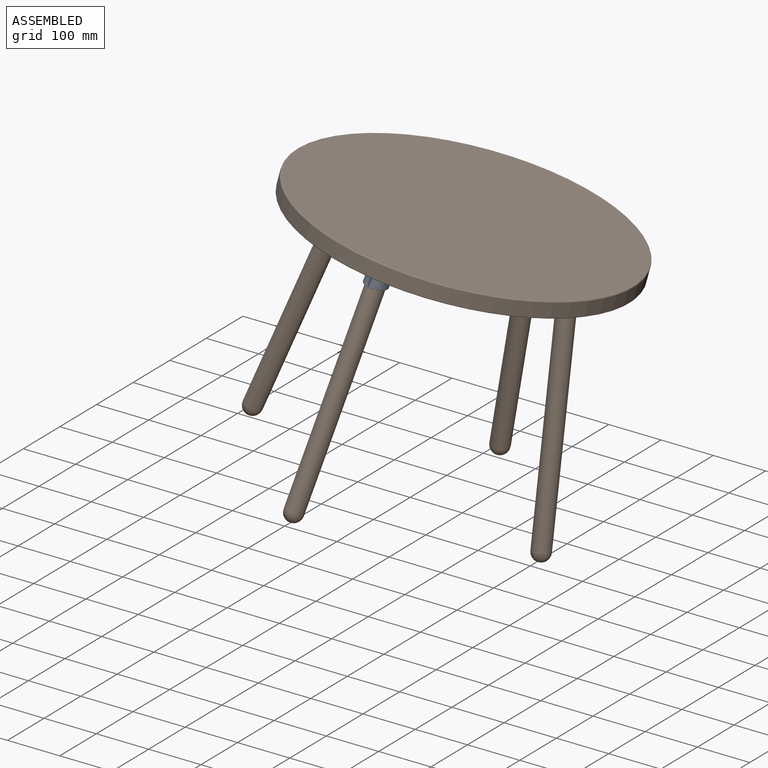
[diagram: assembled view]
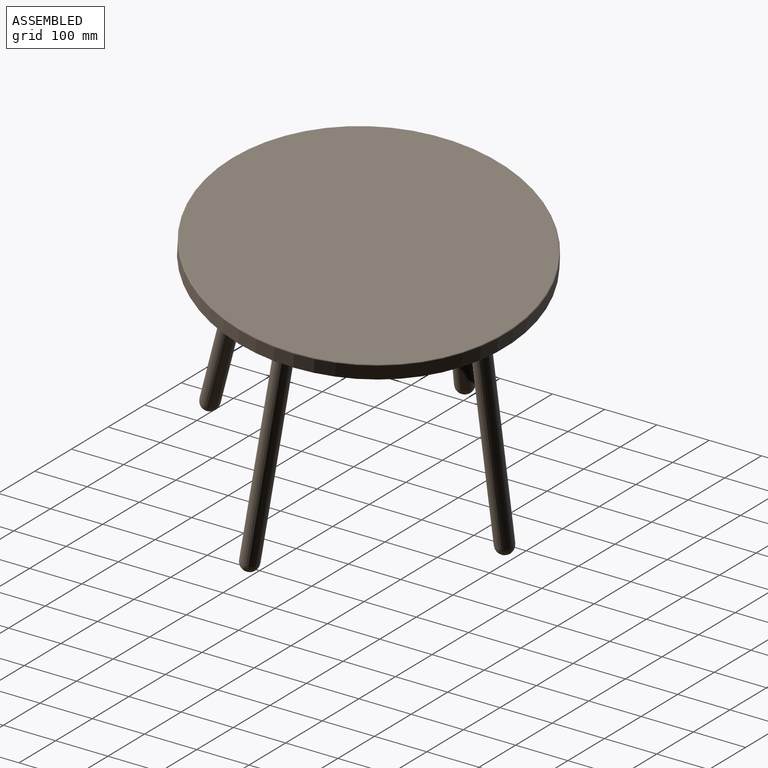
[diagram: assembled view, second angle]
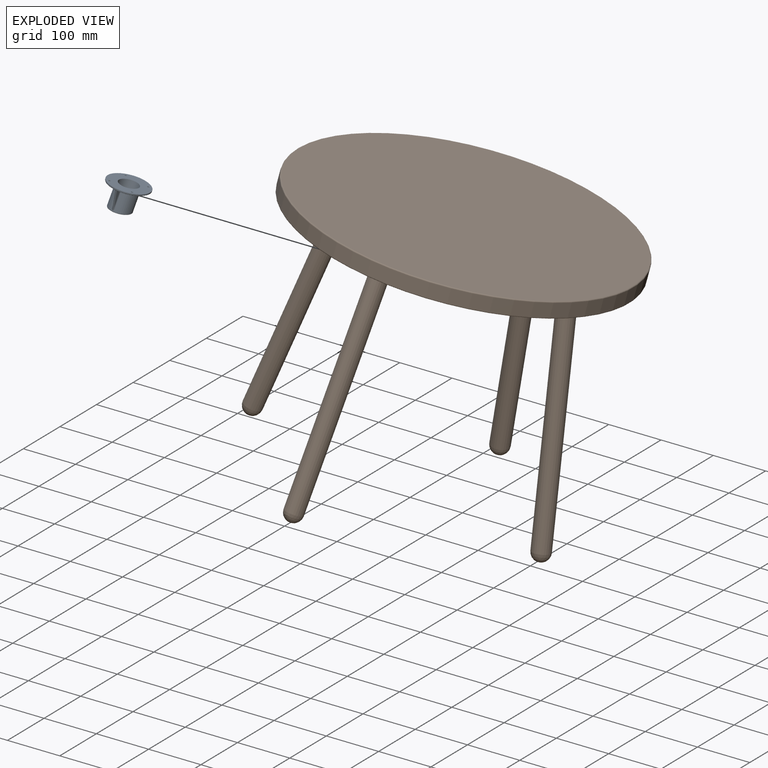
[diagram: exploded view]
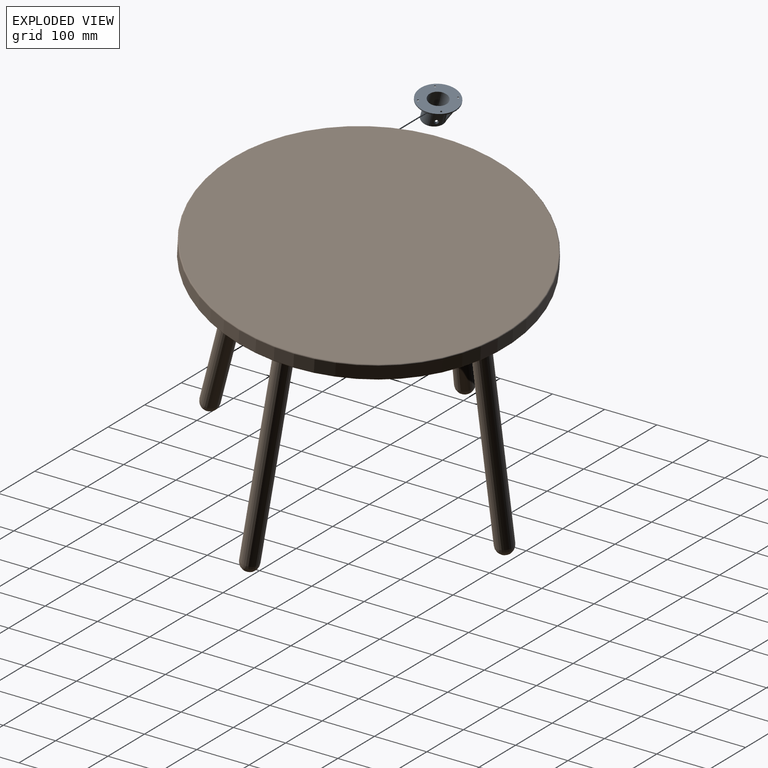
[diagram: exploded view, second angle]
ASSEMBLY  parts=2 mates=2
PART A: 62 faces, bbox 82.3x82.3x55.2 mm
  f0: cylinder r=17.85mm len=55.25mm, axis (-0.17,0,-0.99), area 4862.8mm2, adj f4,f11,f21,f23
  f1: cylinder r=20.85mm len=51.43mm, axis (-0.17,0,-0.99), area 4325.5mm2, adj f24,f25,f26,f27,f32,f33,f34,f35
  f2: plane 74x74mm, normal (0,0,1), area 2283.4mm2, adj f38,f39,f41,f42,f43,f45,f46,f48
  f3: cylinder r=38mm len=76mm, axis (0,0,-1), area 477.5mm2, adj f4,f61
  f4: plane 76x76mm, normal (0,0,-1), area 3484.2mm2, adj f0,f3,f12,f14,f16,f18
  f5: plane 27.48x9.54mm, normal (0,-1,0), area 131mm2, adj f26,f29,f46
  f6: plane 27.48x9.54mm, normal (0,1,0), area 131mm2, adj f27,f28,f53
  f7: plane 35.49x6.16mm, normal (0.99,0,0.17), area 36mm2, adj f28,f29,f33,f50
  f8: plane 28.13x15.25mm, normal (0,-1,0), area 145.9mm2, adj f24,f31,f38
  f9: plane 28.13x15.25mm, normal (0,1,0), area 145.9mm2, adj f25,f30,f45
  f10: plane 36.67x19.87mm, normal (-0.88,0,0.48), area 41.7mm2, adj f30,f31,f36,f41
  f11: plane 40.29x39.7mm, normal (0,0,1), area 240.4mm2, adj f0,f60
  f12: cylinder r=1.7mm len=3.4mm, axis (0,0,1), area 14.3mm2, adj f4,f13
  f13: cone r=1.7mm half-angle=45deg, axis (0,0,1), area 29mm2, adj f12,f59
  f14: cylinder r=1.7mm len=3.4mm, axis (0,0,1), area 14.3mm2, adj f4,f15
  f15: cone r=1.7mm half-angle=45deg, axis (0,0,1), area 29mm2, adj f14,f58
  f16: cylinder r=1.7mm len=3.4mm, axis (0,0,1), area 14.3mm2, adj f4,f17
  f17: cone r=1.7mm half-angle=45deg, axis (0,0,1), area 29mm2, adj f16,f57
  f18: cylinder r=1.7mm len=3.4mm, axis (0,0,1), area 14.3mm2, adj f4,f19
  f19: cone r=1.7mm half-angle=45deg, axis (0,0,1), area 29mm2, adj f18,f56
  f20: cone r=2.25mm half-angle=45deg, axis (-0.7,-0.71,0.12), area 46.5mm2, adj f21,f55
  f21: cylinder r=2.25mm len=4.58mm, axis (-0.7,-0.71,0.12), area 12.9mm2, adj f0,f20
  f22: cone r=2.25mm half-angle=45deg, axis (-0.7,0.71,0.12), area 43.5mm2, adj f23,f54
  f23: cylinder r=2.25mm len=4.58mm, axis (-0.7,0.71,0.12), area 12.9mm2, adj f0,f22
  f24: cylinder r=2mm len=28.47mm, axis (-0.17,0,-0.99), area 80.9mm2, adj f1,f8,f35,f40
  f25: cylinder r=2mm len=28.47mm, axis (-0.17,0,-0.99), area 80.9mm2, adj f1,f9,f37,f47
  f26: cylinder r=2mm len=27.82mm, axis (-0.17,0,-0.99), area 79.1mm2, adj f1,f5,f34,f44
  f27: cylinder r=2mm len=27.82mm, axis (-0.17,0,-0.99), area 79.1mm2, adj f1,f6,f32,f51
  f28: cylinder r=1mm len=35.66mm, axis (-0.17,0,0.99), area 52mm2, adj f6,f7,f32,f52
  f29: cylinder r=1mm len=35.66mm, axis (0.17,0,-0.99), area 52mm2, adj f5,f7,f34,f48
  f30: cylinder r=1mm len=37.15mm, axis (-0.48,0,-0.88), area 59.8mm2, adj f9,f10,f37,f43
  f31: cylinder r=1mm len=37.15mm, axis (0.48,0,0.88), area 59.8mm2, adj f8,f10,f35,f39
  f32: bspline ~10.81x2.99mm, area 15.2mm2, adj f1,f27,f28,f33
  f33: bspline ~1x0.7mm, area 0.7mm2, adj f1,f7,f32,f34
  f34: bspline ~10.26x2.9mm, area 15.2mm2, adj f1,f26,f29,f33
  f35: bspline ~10.97x4.08mm, area 15.9mm2, adj f1,f24,f31,f36
  f36: bspline ~1x0.63mm, area 0.6mm2, adj f1,f10,f35,f37
  f37: bspline ~10.52x3.91mm, area 15.9mm2, adj f1,f25,f30,f36
  f38: cylinder r=2mm len=10.37mm, axis (1,0,0), area 32.6mm2, adj f2,f8,f39,f40
  f39: bspline ~4.01x3.52mm, area 8.5mm2, adj f2,f31,f38,f41
  f40: sphere r=2mm, area 5.2mm2, adj f24,f38,f42
  f41: cylinder r=2mm len=1.76mm, axis (0,1,0), area 2.1mm2, adj f2,f10,f39,f43
  f42: bspline ~45.84x19.65mm, area 193.8mm2, adj f1,f2,f40,f44
  f43: bspline ~4.01x3mm, area 8.5mm2, adj f2,f30,f41,f45
  f44: sphere r=2mm, area 6.1mm2, adj f26,f42,f46
  f45: cylinder r=2mm len=10.37mm, axis (-1,0,0), area 32.6mm2, adj f2,f9,f43,f47
  f46: cylinder r=2mm len=9.54mm, axis (-1,0,0), area 30mm2, adj f2,f5,f44,f48
  f47: sphere r=2mm, area 5.2mm2, adj f25,f45,f49
  f48: bspline ~3.57x3mm, area 8.3mm2, adj f2,f29,f46,f50
  f49: bspline ~45.84x19.65mm, area 193.8mm2, adj f1,f2,f47,f51
  f50: cylinder r=2mm len=1.97mm, axis (0,1,0), area 2.8mm2, adj f2,f7,f48,f52
  f51: sphere r=2mm, area 6.1mm2, adj f27,f49,f53
  f52: bspline ~3.57x3.52mm, area 8.3mm2, adj f2,f28,f50,f53
  f53: cylinder r=2mm len=9.54mm, axis (1,0,0), area 30mm2, adj f2,f6,f51,f52
  f54: bspline ~9.72x6.67mm, area 24.5mm2, adj f1,f22
  f55: bspline ~9.71x6.67mm, area 24.5mm2, adj f1,f20
  f56: torus R=3.77mm, axis (0,0,1), area 16.8mm2, adj f2,f19
  f57: torus R=3.77mm, axis (0,0,1), area 16.8mm2, adj f2,f17
  f58: torus R=3.77mm, axis (0,0,1), area 16.8mm2, adj f2,f15
  f59: torus R=3.77mm, axis (0,0,1), area 16.8mm2, adj f2,f13
  f60: bspline ~42.22x41.68mm, area 203.6mm2, adj f1,f11
  f61: torus R=37mm, axis (0,0,1), area 371.5mm2, adj f2,f3
PART B: 17 faces, bbox 650.7x650.7x474.6 mm
  f0: plane 16.9x16.9mm, normal (0,0,-1), area 224.4mm2, adj f1
  f1: sphere r=17mm, area 1575.5mm2, adj f0,f2
  f2: cylinder r=17mm len=435.35mm, axis (0,-0.17,0.99), area 46250.5mm2, adj f1,f11
  f3: plane 16.9x16.9mm, normal (0,0,-1), area 224.4mm2, adj f4
  f4: sphere r=17mm, area 1575.5mm2, adj f3,f5
  f5: cylinder r=17mm len=435.35mm, axis (0.17,0,0.99), area 46250.5mm2, adj f4,f11
  f6: plane 16.9x16.9mm, normal (0,0,-1), area 224.4mm2, adj f7
  f7: sphere r=17mm, area 1575.5mm2, adj f6,f8
  f8: cylinder r=17mm len=435.35mm, axis (0,0.17,0.99), area 46250.5mm2, adj f7,f11
  f9: cylinder r=300mm len=600mm, axis (0,0,-1), area 49008.8mm2, adj f15,f16
  f10: plane 596x596mm, normal (0,0,1), area 278986mm2, adj f16
  f11: plane 597.24x597.24mm, normal (0,0,-1), area 275300.1mm2, adj f2,f5,f8,f12,f15
  f12: cylinder r=17mm len=435.35mm, axis (-0.17,0,0.99), area 46250.5mm2, adj f11,f13
  f13: sphere r=17mm, area 1575.5mm2, adj f12,f14
  f14: plane 16.9x16.9mm, normal (0,0,-1), area 224.4mm2, adj f13
  f15: torus R=298mm, axis (0,0,1), area 5907.4mm2, adj f9,f11
  f16: torus R=298mm, axis (0,0,1), area 5907.4mm2, adj f9,f10
PLACE A rot(axis=(0.7,-0.71,0),166.1deg) t=(-84.17,-319.95,51.48)mm
PLACE B rot(axis=(-0.71,0.71,-0.06),13.9deg) t=(-84.17,-111.07,15.24)mm
MATE planar B.f9 <-> A.f3  axis (-0.17,-0.17,-0.97) through (-84.17,-111.07,15.24)mm
MATE cylindrical A.f0 <-> B.f8  axis (0.17,0.33,0.93) through (-83.59,-318.81,54.63)mm
